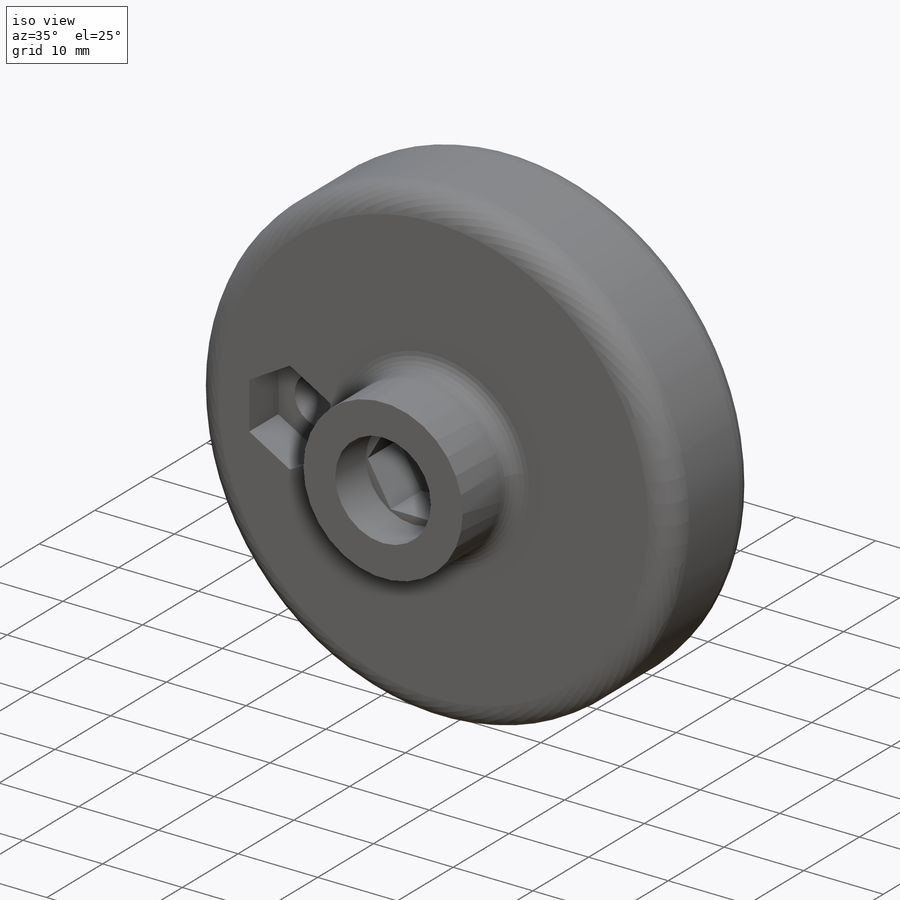
[diagram: iso view]
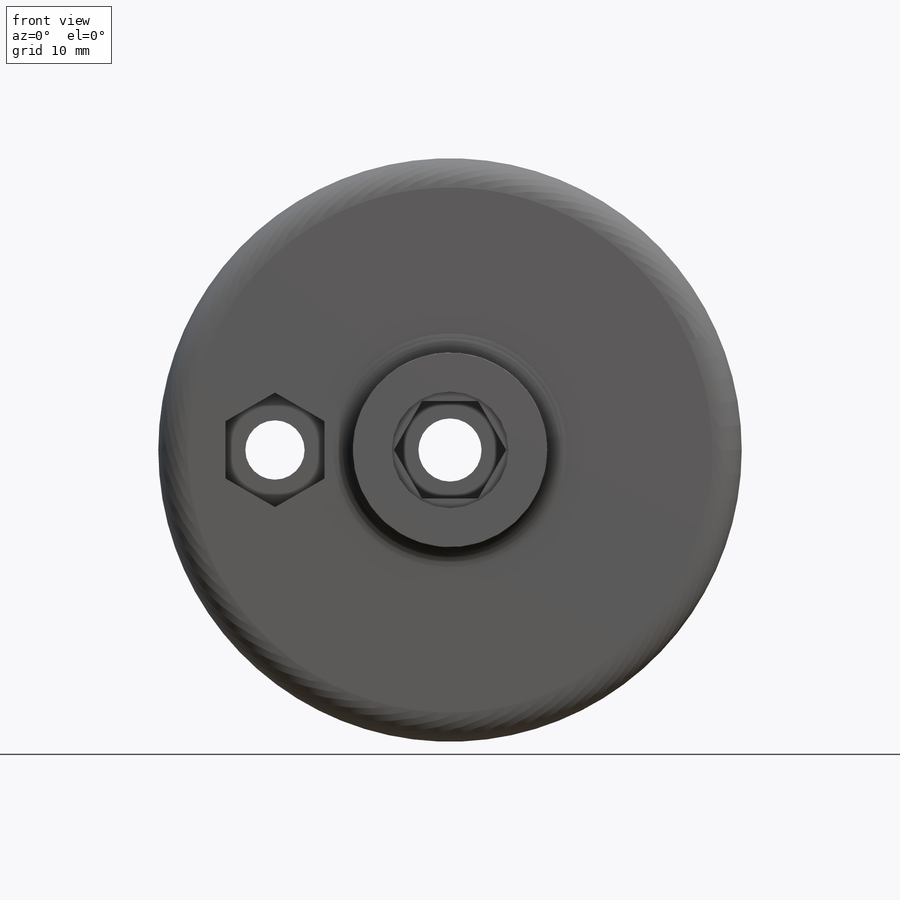
[diagram: front view]
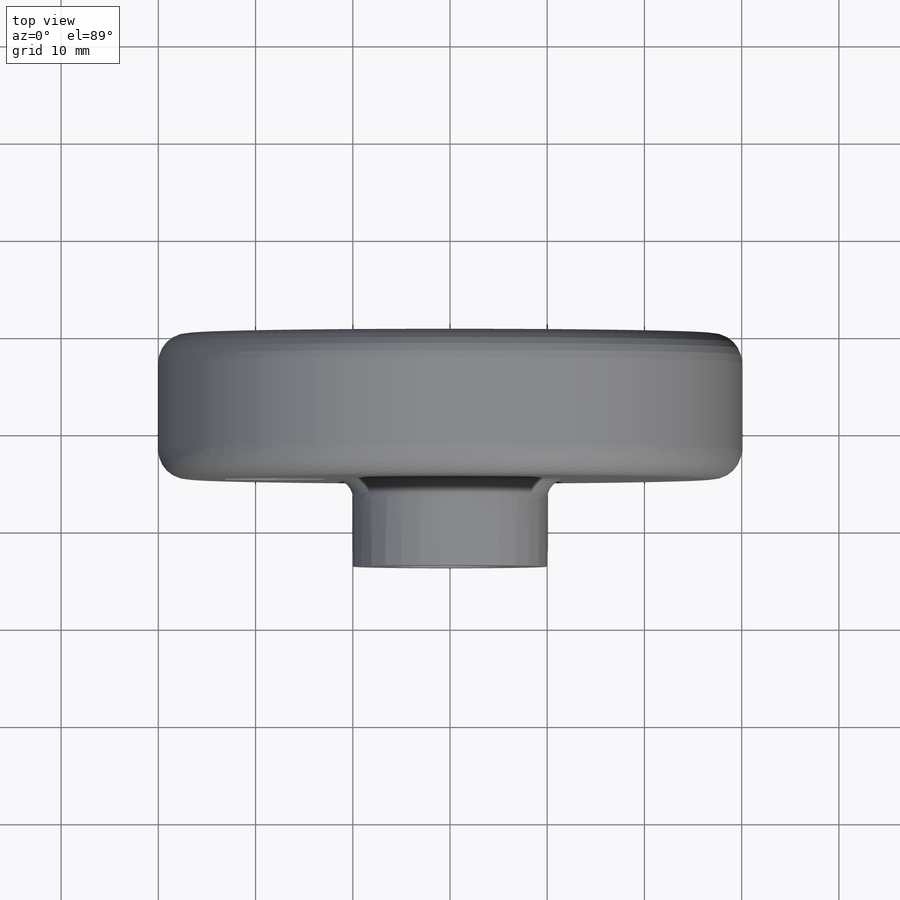
[diagram: top view]
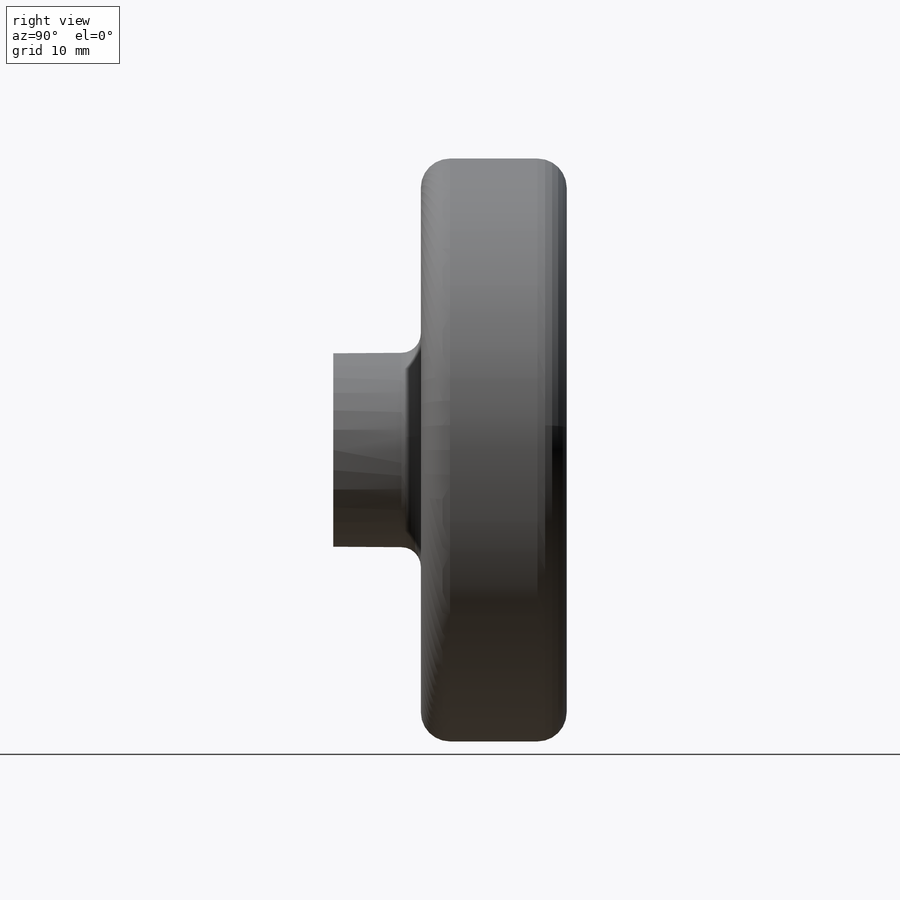
[diagram: right view]
SOLIDWORKS PART (.sldprt)
format: sldprt  version: not decoded by parser v0  size: 313,856 bytes
history: native  units: mm
features: sketch x9, cut_extrude x5, extrude x2, fillet x2, material x1, hole x1, thread x1 (+12 scaffold rows collapsed)
feature tree (33):
  scaffold x12  (default folders/planes/origin — collapsed)
  material  "Material <not specified>"
  sketch  "Sketch1"  dims[D1=60.0mm]
  extrude  "Boss-Extrude1"  Depth=15mm
  sketch  "Sketch2"  dims[D1=20.0mm]
  extrude  "Boss-Extrude2"  Depth=9mm
  sketch  "Sketch3"  dims[D1=6.5mm]
  cut_extrude  "Cut-Extrude1"  [1 undecoded]
  fillet  "Fillet1"  Radius=3mm
  hole  "M5x0.8 Tapped Hole1"  Diameter=4.2mm Depth=30mm
  sketch  "Sketch6"  dims[D1=4.5mm D2=19.5mm]
  sketch  "Sketch5"  dims[hole-wizard template sketch: 60 standard entries collapsed; hole parameters kept: c18.Thru Tap Drill Depth=30.0mm]
  thread  "Hole Thread1"  Diameter=5mm  [1 undecoded]
  sketch  "Sketch8"  dims[D1=6.1mm D2=18.0mm]
  cut_extrude  "Cut-Extrude3"  [1 undecoded]
  sketch  "Sketch7"  dims[D1=10.2mm]
  cut_extrude  "Cut-Extrude4"  Depth=5.2mm
  sketch  "Sketch9"  dims[D1=12.0mm]
  cut_extrude  "Cut-Extrude5"  Depth=5.5mm
  sketch  "Sketch10"  dims[D1=10.0mm]
  cut_extrude  "Cut-Extrude6"  Depth=5.5mm
  fillet  "Fillet2"  Radius=2mm
decode coverage: 18 of 20 modeling features carry decoded parameters
note: ~ marks probable driven/reference dimensions
note: 3 parameter values undecoded
note: suppression state not decoded; provenance and decode notes live in map.json
